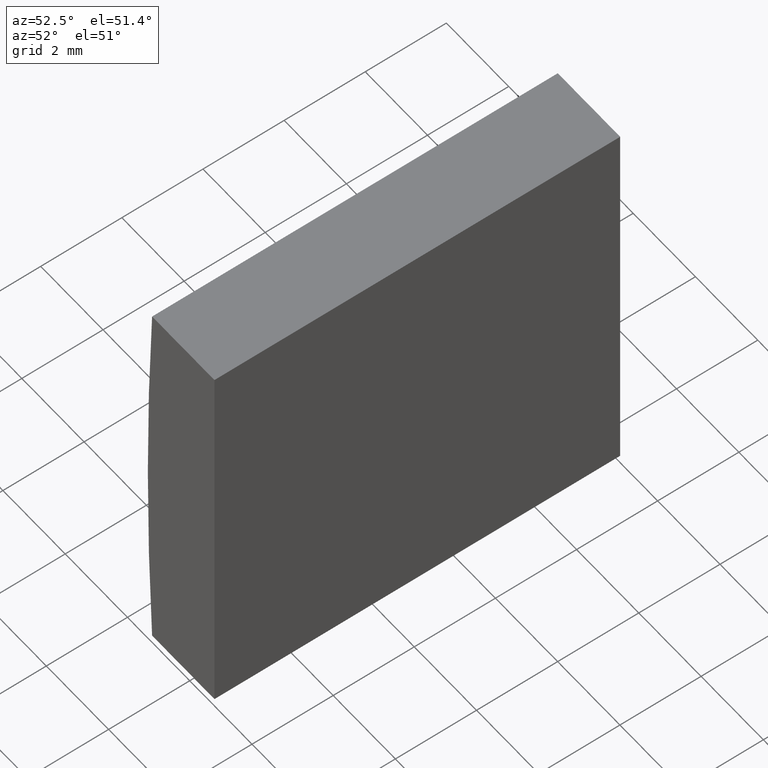
[diagram: clean part render]
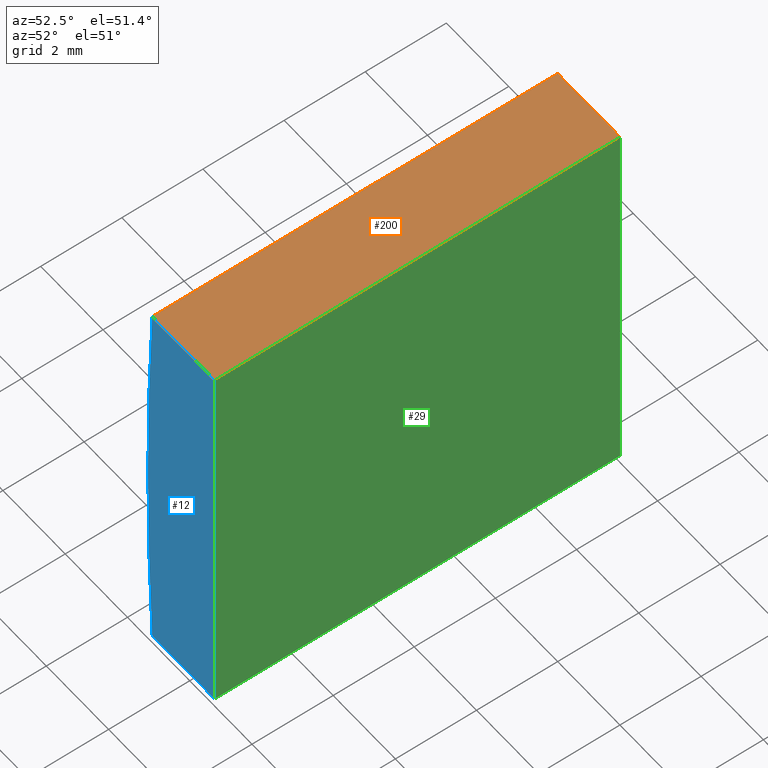
[diagram: same view with three faces highlighted in distinct colors, each labeled with its STEP entity id]
A machine part, auxiliary view with three faces highlighted in distinct colors.
Their STEP definitions:

[orange] entity #200 — the highlighted planar face has unit normal (0, 0, -1).
#4 = DIRECTION ( 'NONE',  ( -0.0000000000000000000, -1.000000000000000000, -0.0000000000000000000 ) ) ;
#13 = EDGE_CURVE ( 'NONE', #197, #67, #171, .T. ) ;
#39 = CARTESIAN_POINT ( 'NONE',  ( -87.20838012971630300, 10.00000000000000000, 5.000000000000000000 ) ) ;
#45 = CARTESIAN_POINT ( 'NONE',  ( -87.20838012971630300, 0.0000000000000000000, 5.000000000000000000 ) ) ;
#47 = VECTOR ( 'NONE', #164, 1000.000000000000000 ) ;
#59 = ORIENTED_EDGE ( 'NONE', *, *, #60, .F. ) ;
#60 = EDGE_CURVE ( 'NONE', #197, #107, #126, .T. ) ;
#67 = VERTEX_POINT ( 'NONE', #146 ) ;
#73 = EDGE_CURVE ( 'NONE', #107, #139, #144, .T. ) ;
#74 = FACE_OUTER_BOUND ( 'NONE', #192, .T. ) ;
#75 = DIRECTION ( 'NONE',  ( 1.000000000000000000, 0.0000000000000000000, 0.0000000000000000000 ) ) ;
#83 = ORIENTED_EDGE ( 'NONE', *, *, #73, .F. ) ;
#101 = AXIS2_PLACEMENT_3D ( 'NONE', #203, #202, #189 ) ;
#103 = ORIENTED_EDGE ( 'NONE', *, *, #13, .T. ) ;
#106 = CARTESIAN_POINT ( 'NONE',  ( -85.20479566514873700, 10.00000000000000000, 5.000000000000000000 ) ) ;
#107 = VERTEX_POINT ( 'NONE', #106 ) ;
#108 = EDGE_CURVE ( 'NONE', #67, #139, #125, .T. ) ;
#121 = CARTESIAN_POINT ( 'NONE',  ( -85.20479566514873700, 10.00000000000000000, 5.000000000000000000 ) ) ;
#122 = DIRECTION ( 'NONE',  ( -0.0000000000000000000, -1.000000000000000000, -0.0000000000000000000 ) ) ;
#125 = LINE ( 'NONE', #45, #47 ) ;
#126 = LINE ( 'NONE', #168, #194 ) ;
#127 = PLANE ( 'NONE',  #101 ) ;
#128 = CARTESIAN_POINT ( 'NONE',  ( -87.20838012971630300, 10.00000000000000000, 5.000000000000000000 ) ) ;
#132 = ORIENTED_EDGE ( 'NONE', *, *, #108, .T. ) ;
#139 = VERTEX_POINT ( 'NONE', #177 ) ;
#144 = LINE ( 'NONE', #121, #188 ) ;
#146 = CARTESIAN_POINT ( 'NONE',  ( -87.20838012971630300, 0.0000000000000000000, 5.000000000000000000 ) ) ;
#151 = VECTOR ( 'NONE', #4, 1000.000000000000000 ) ;
#164 = DIRECTION ( 'NONE',  ( 1.000000000000000000, 0.0000000000000000000, 0.0000000000000000000 ) ) ;
#168 = CARTESIAN_POINT ( 'NONE',  ( -87.20838012971630300, 10.00000000000000000, 5.000000000000000000 ) ) ;
#171 = LINE ( 'NONE', #39, #151 ) ;
#177 = CARTESIAN_POINT ( 'NONE',  ( -85.20479566514873700, 0.0000000000000000000, 5.000000000000000000 ) ) ;
#188 = VECTOR ( 'NONE', #122, 1000.000000000000000 ) ;
#189 = DIRECTION ( 'NONE',  ( -1.000000000000000000, 0.0000000000000000000, -0.0000000000000000000 ) ) ;
#192 = EDGE_LOOP ( 'NONE', ( #132, #83, #59, #103 ) ) ;
#194 = VECTOR ( 'NONE', #75, 1000.000000000000000 ) ;
#197 = VERTEX_POINT ( 'NONE', #128 ) ;
#200 = ADVANCED_FACE ( 'NONE', ( #74 ), #127, .F. ) ;
#202 = DIRECTION ( 'NONE',  ( 0.0000000000000000000, 0.0000000000000000000, -1.000000000000000000 ) ) ;
#203 = CARTESIAN_POINT ( 'NONE',  ( -87.20838012971630300, 10.00000000000000000, 5.000000000000000000 ) ) ;

[blue] entity #12 — the highlighted planar face has unit normal (0, 1, 0).
#6 = DIRECTION ( 'NONE',  ( 0.0000000000000000000, 1.000000000000000000, 0.0000000000000000000 ) ) ;
#8 = ORIENTED_EDGE ( 'NONE', *, *, #191, .F. ) ;
#11 = LINE ( 'NONE', #56, #136 ) ;
#12 = ADVANCED_FACE ( 'NONE', ( #130 ), #51, .F. ) ;
#15 = EDGE_LOOP ( 'NONE', ( #118, #105, #8, #97 ) ) ;
#16 = CARTESIAN_POINT ( 'NONE',  ( -85.20479566514873700, 0.0000000000000000000, -4.999999999999987600 ) ) ;
#18 = DIRECTION ( 'NONE',  ( 0.0000000000000000000, 1.000000000000000000, 0.0000000000000000000 ) ) ;
#35 = DIRECTION ( 'NONE',  ( 0.0000000000000000000, -0.0000000000000000000, 1.000000000000000000 ) ) ;
#43 = CARTESIAN_POINT ( 'NONE',  ( 4.355204334851265500, 0.0000000000000000000, 4.286263797015675000E-017 ) ) ;
#45 = CARTESIAN_POINT ( 'NONE',  ( -87.20838012971630300, 0.0000000000000000000, 5.000000000000000000 ) ) ;
#47 = VECTOR ( 'NONE', #164, 1000.000000000000000 ) ;
#51 = PLANE ( 'NONE',  #52 ) ;
#52 = AXIS2_PLACEMENT_3D ( 'NONE', #165, #18, #35 ) ;
#56 = CARTESIAN_POINT ( 'NONE',  ( -85.20479566514873700, 0.0000000000000000000, -4.999999999999987600 ) ) ;
#61 = LINE ( 'NONE', #195, #114 ) ;
#66 = AXIS2_PLACEMENT_3D ( 'NONE', #43, #6, #141 ) ;
#67 = VERTEX_POINT ( 'NONE', #146 ) ;
#97 = ORIENTED_EDGE ( 'NONE', *, *, #108, .F. ) ;
#102 = DIRECTION ( 'NONE',  ( -1.000000000000000000, -0.0000000000000000000, -6.060670037416406300E-015 ) ) ;
#105 = ORIENTED_EDGE ( 'NONE', *, *, #160, .F. ) ;
#108 = EDGE_CURVE ( 'NONE', #67, #139, #125, .T. ) ;
#111 = VERTEX_POINT ( 'NONE', #16 ) ;
#113 = EDGE_CURVE ( 'NONE', #117, #67, #176, .T. ) ;
#114 = VECTOR ( 'NONE', #102, 1000.000000000000000 ) ;
#117 = VERTEX_POINT ( 'NONE', #157 ) ;
#118 = ORIENTED_EDGE ( 'NONE', *, *, #113, .F. ) ;
#125 = LINE ( 'NONE', #45, #47 ) ;
#130 = FACE_OUTER_BOUND ( 'NONE', #15, .T. ) ;
#136 = VECTOR ( 'NONE', #142, 1000.000000000000000 ) ;
#139 = VERTEX_POINT ( 'NONE', #177 ) ;
#141 = DIRECTION ( 'NONE',  ( 0.0000000000000000000, 0.0000000000000000000, 1.000000000000000000 ) ) ;
#142 = DIRECTION ( 'NONE',  ( -0.0000000000000000000, -0.0000000000000000000, -1.000000000000000000 ) ) ;
#146 = CARTESIAN_POINT ( 'NONE',  ( -87.20838012971630300, 0.0000000000000000000, 5.000000000000000000 ) ) ;
#157 = CARTESIAN_POINT ( 'NONE',  ( -87.20838012971630300, 0.0000000000000000000, -5.000000000000000000 ) ) ;
#160 = EDGE_CURVE ( 'NONE', #111, #117, #61, .T. ) ;
#164 = DIRECTION ( 'NONE',  ( 1.000000000000000000, 0.0000000000000000000, 0.0000000000000000000 ) ) ;
#165 = CARTESIAN_POINT ( 'NONE',  ( 4.355204334851265500, 0.0000000000000000000, 4.286263797015675000E-017 ) ) ;
#176 = CIRCLE ( 'NONE', #66, 91.70000000000000300 ) ;
#177 = CARTESIAN_POINT ( 'NONE',  ( -85.20479566514873700, 0.0000000000000000000, 5.000000000000000000 ) ) ;
#191 = EDGE_CURVE ( 'NONE', #139, #111, #11, .T. ) ;
#195 = CARTESIAN_POINT ( 'NONE',  ( -87.20838012971630300, 0.0000000000000000000, -5.000000000000000000 ) ) ;

[green] entity #29 — the highlighted planar face has unit normal (-1, 0, 0).
#2 = EDGE_CURVE ( 'NONE', #137, #111, #34, .T. ) ;
#11 = LINE ( 'NONE', #56, #136 ) ;
#16 = CARTESIAN_POINT ( 'NONE',  ( -85.20479566514873700, 0.0000000000000000000, -4.999999999999987600 ) ) ;
#29 = ADVANCED_FACE ( 'NONE', ( #133 ), #72, .F. ) ;
#34 = LINE ( 'NONE', #85, #193 ) ;
#42 = AXIS2_PLACEMENT_3D ( 'NONE', #94, #152, #181 ) ;
#44 = ORIENTED_EDGE ( 'NONE', *, *, #2, .F. ) ;
#55 = VECTOR ( 'NONE', #162, 1000.000000000000000 ) ;
#56 = CARTESIAN_POINT ( 'NONE',  ( -85.20479566514873700, 0.0000000000000000000, -4.999999999999987600 ) ) ;
#57 = DIRECTION ( 'NONE',  ( -0.0000000000000000000, -1.000000000000000000, -0.0000000000000000000 ) ) ;
#72 = PLANE ( 'NONE',  #42 ) ;
#73 = EDGE_CURVE ( 'NONE', #107, #139, #144, .T. ) ;
#76 = ORIENTED_EDGE ( 'NONE', *, *, #73, .T. ) ;
#81 = CARTESIAN_POINT ( 'NONE',  ( -85.20479566514873700, 10.00000000000000000, -4.999999999999987600 ) ) ;
#85 = CARTESIAN_POINT ( 'NONE',  ( -85.20479566514873700, 10.00000000000000000, -4.999999999999987600 ) ) ;
#87 = ORIENTED_EDGE ( 'NONE', *, *, #110, .F. ) ;
#94 = CARTESIAN_POINT ( 'NONE',  ( -85.20479566514873700, 10.00000000000000000, -4.999999999999987600 ) ) ;
#106 = CARTESIAN_POINT ( 'NONE',  ( -85.20479566514873700, 10.00000000000000000, 5.000000000000000000 ) ) ;
#107 = VERTEX_POINT ( 'NONE', #106 ) ;
#110 = EDGE_CURVE ( 'NONE', #107, #137, #123, .T. ) ;
#111 = VERTEX_POINT ( 'NONE', #16 ) ;
#121 = CARTESIAN_POINT ( 'NONE',  ( -85.20479566514873700, 10.00000000000000000, 5.000000000000000000 ) ) ;
#122 = DIRECTION ( 'NONE',  ( -0.0000000000000000000, -1.000000000000000000, -0.0000000000000000000 ) ) ;
#123 = LINE ( 'NONE', #81, #55 ) ;
#133 = FACE_OUTER_BOUND ( 'NONE', #156, .T. ) ;
#136 = VECTOR ( 'NONE', #142, 1000.000000000000000 ) ;
#137 = VERTEX_POINT ( 'NONE', #204 ) ;
#139 = VERTEX_POINT ( 'NONE', #177 ) ;
#142 = DIRECTION ( 'NONE',  ( -0.0000000000000000000, -0.0000000000000000000, -1.000000000000000000 ) ) ;
#144 = LINE ( 'NONE', #121, #188 ) ;
#152 = DIRECTION ( 'NONE',  ( -1.000000000000000000, 0.0000000000000000000, 0.0000000000000000000 ) ) ;
#156 = EDGE_LOOP ( 'NONE', ( #174, #44, #87, #76 ) ) ;
#162 = DIRECTION ( 'NONE',  ( -0.0000000000000000000, -0.0000000000000000000, -1.000000000000000000 ) ) ;
#174 = ORIENTED_EDGE ( 'NONE', *, *, #191, .T. ) ;
#177 = CARTESIAN_POINT ( 'NONE',  ( -85.20479566514873700, 0.0000000000000000000, 5.000000000000000000 ) ) ;
#181 = DIRECTION ( 'NONE',  ( 0.0000000000000000000, 0.0000000000000000000, 1.000000000000000000 ) ) ;
#188 = VECTOR ( 'NONE', #122, 1000.000000000000000 ) ;
#191 = EDGE_CURVE ( 'NONE', #139, #111, #11, .T. ) ;
#193 = VECTOR ( 'NONE', #57, 1000.000000000000000 ) ;
#204 = CARTESIAN_POINT ( 'NONE',  ( -85.20479566514873700, 10.00000000000000000, -4.999999999999987600 ) ) ;